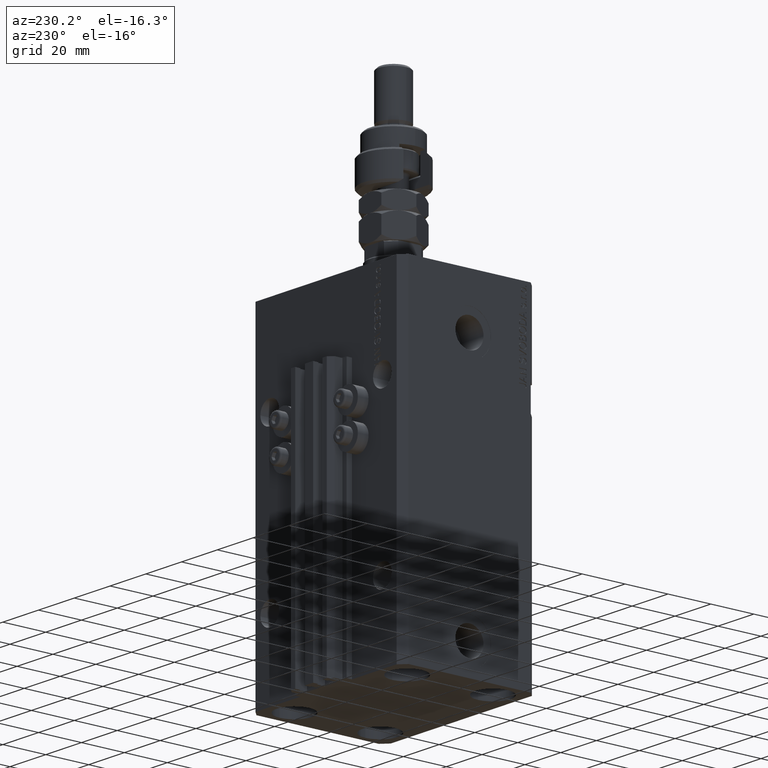
[diagram: clean part render]
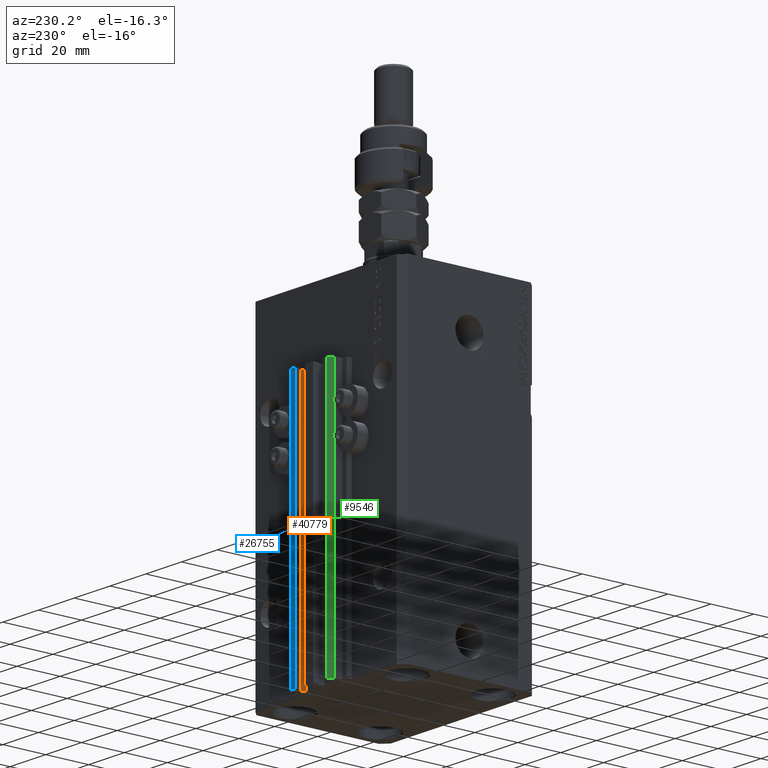
[diagram: same view with three faces highlighted in distinct colors, each labeled with its STEP entity id]
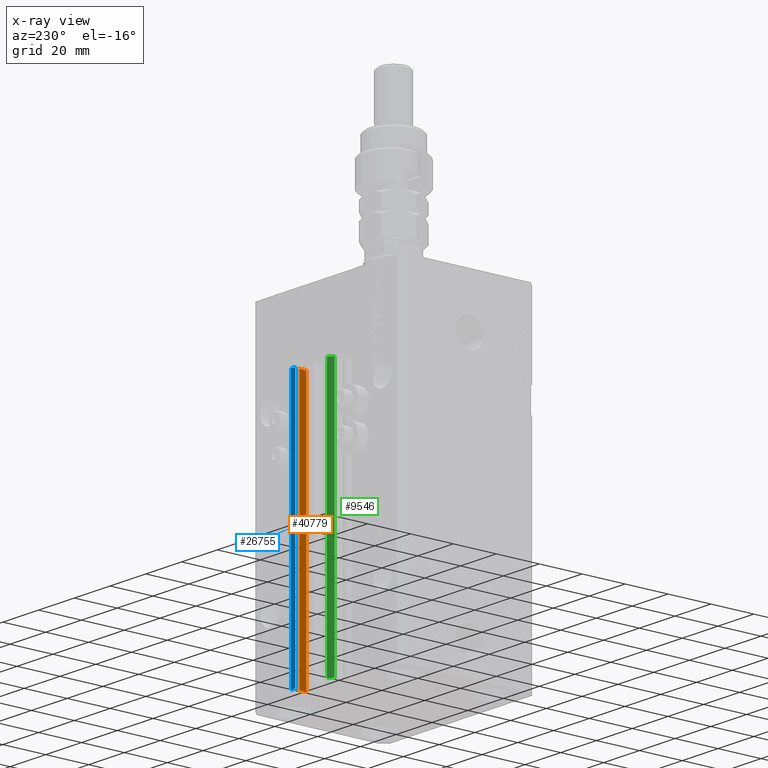
[diagram: x-ray of the same camera — body ghosted, the three highlighted faces saturated]
A machine part, auxiliary view with three faces highlighted in distinct colors.
The next image is the same camera in x-ray (body ghosted, the three faces saturated) — at least one of them is partly hidden behind the body in this view.
Their STEP definitions:

[orange] entity #40779 — the highlighted planar face has unit normal (-1, 0, 0).
#182 = AXIS2_PLACEMENT_3D ( 'NONE', #44430, #35849, #36106 ) ;
#611 = EDGE_CURVE ( 'NONE', #36556, #10864, #38581, .T. ) ;
#2662 = VERTEX_POINT ( 'NONE', #13393 ) ;
#5672 = ORIENTED_EDGE ( 'NONE', *, *, #20306, .T. ) ;
#7079 = LINE ( 'NONE', #30266, #15381 ) ;
#7697 = CARTESIAN_POINT ( 'NONE',  ( 8.400000000000000355, 33.70000000000000995, -153.0000000000000000 ) ) ;
#7750 = FACE_OUTER_BOUND ( 'NONE', #13682, .T. ) ;
#10864 = VERTEX_POINT ( 'NONE', #26174 ) ;
#12683 = PLANE ( 'NONE',  #182 ) ;
#13393 = CARTESIAN_POINT ( 'NONE',  ( 8.400000000000000355, 33.70000000000000995, -33.00000000000000000 ) ) ;
#13682 = EDGE_LOOP ( 'NONE', ( #44034, #49036, #5672, #26819 ) ) ;
#14702 = CARTESIAN_POINT ( 'NONE',  ( 8.400000000000003908, 36.90000000000001279, -153.0000000000000000 ) ) ;
#15137 = CARTESIAN_POINT ( 'NONE',  ( 8.400000000000000355, 36.90000000000001279, -33.00000000000000000 ) ) ;
#15381 = VECTOR ( 'NONE', #18547, 1000.000000000000000 ) ;
#17653 = EDGE_CURVE ( 'NONE', #47040, #2662, #7079, .T. ) ;
#18224 = DIRECTION ( 'NONE',  ( 0.000000000000000000, 0.000000000000000000, 1.000000000000000000 ) ) ;
#18547 = DIRECTION ( 'NONE',  ( 0.000000000000000000, 0.000000000000000000, 1.000000000000000000 ) ) ;
#19062 = LINE ( 'NONE', #15137, #25299 ) ;
#20306 = EDGE_CURVE ( 'NONE', #36556, #47040, #24827, .T. ) ;
#24827 = LINE ( 'NONE', #45355, #50372 ) ;
#25299 = VECTOR ( 'NONE', #38308, 1000.000000000000000 ) ;
#26174 = CARTESIAN_POINT ( 'NONE',  ( 8.400000000000003908, 36.90000000000001279, -33.00000000000000000 ) ) ;
#26819 = ORIENTED_EDGE ( 'NONE', *, *, #17653, .T. ) ;
#30266 = CARTESIAN_POINT ( 'NONE',  ( 8.400000000000000355, 33.70000000000000995, -153.0000000000000000 ) ) ;
#30794 = CARTESIAN_POINT ( 'NONE',  ( 8.400000000000003908, 36.90000000000001279, -153.0000000000000000 ) ) ;
#35849 = DIRECTION ( 'NONE',  ( -1.000000000000000000, 5.421010862427508365E-16, 0.000000000000000000 ) ) ;
#36106 = DIRECTION ( 'NONE',  ( -5.421010862427508365E-16, -1.000000000000000000, 0.000000000000000000 ) ) ;
#36556 = VERTEX_POINT ( 'NONE', #14702 ) ;
#38308 = DIRECTION ( 'NONE',  ( -5.421010862427508365E-16, -1.000000000000000000, 0.000000000000000000 ) ) ;
#38581 = LINE ( 'NONE', #30794, #43076 ) ;
#40686 = DIRECTION ( 'NONE',  ( -5.421010862427508365E-16, -1.000000000000000000, 0.000000000000000000 ) ) ;
#40779 = ADVANCED_FACE ( 'NONE', ( #7750 ), #12683, .T. ) ;
#43076 = VECTOR ( 'NONE', #18224, 1000.000000000000000 ) ;
#44034 = ORIENTED_EDGE ( 'NONE', *, *, #44429, .F. ) ;
#44429 = EDGE_CURVE ( 'NONE', #10864, #2662, #19062, .T. ) ;
#44430 = CARTESIAN_POINT ( 'NONE',  ( 8.400000000000000355, 36.90000000000001279, -153.0000000000000000 ) ) ;
#45355 = CARTESIAN_POINT ( 'NONE',  ( 8.400000000000000355, 36.90000000000001279, -153.0000000000000000 ) ) ;
#47040 = VERTEX_POINT ( 'NONE', #7697 ) ;
#49036 = ORIENTED_EDGE ( 'NONE', *, *, #611, .F. ) ;
#50372 = VECTOR ( 'NONE', #40686, 1000.000000000000000 ) ;

[blue] entity #26755 — the highlighted planar face has unit normal (0, 1, 0).
#946 = DIRECTION ( 'NONE',  ( 0.000000000000000000, 0.000000000000000000, 1.000000000000000000 ) ) ;
#1267 = DIRECTION ( 'NONE',  ( -1.000000000000000000, 0.000000000000000000, 0.000000000000000000 ) ) ;
#3556 = FACE_OUTER_BOUND ( 'NONE', #41201, .T. ) ;
#4781 = ORIENTED_EDGE ( 'NONE', *, *, #46089, .T. ) ;
#5715 = CARTESIAN_POINT ( 'NONE',  ( 9.999999999999998224, 39.50000000000002132, -153.0000000000000000 ) ) ;
#6788 = CARTESIAN_POINT ( 'NONE',  ( 9.999999999999998224, 39.50000000000002132, -33.00000000000000000 ) ) ;
#6873 = VECTOR ( 'NONE', #1267, 1000.000000000000000 ) ;
#7388 = VERTEX_POINT ( 'NONE', #17423 ) ;
#8764 = VERTEX_POINT ( 'NONE', #32915 ) ;
#9378 = LINE ( 'NONE', #5715, #50568 ) ;
#9664 = VERTEX_POINT ( 'NONE', #21229 ) ;
#10701 = LINE ( 'NONE', #6788, #35230 ) ;
#12859 = VERTEX_POINT ( 'NONE', #31606 ) ;
#12927 = LINE ( 'NONE', #41525, #23721 ) ;
#13243 = LINE ( 'NONE', #49402, #6873 ) ;
#16454 = AXIS2_PLACEMENT_3D ( 'NONE', #42862, #23088, #47013 ) ;
#17423 = CARTESIAN_POINT ( 'NONE',  ( 7.649999999999998579, 39.50000000000002132, -153.0000000000000000 ) ) ;
#21229 = CARTESIAN_POINT ( 'NONE',  ( 9.999999999999998224, 39.50000000000002132, -33.00000000000000000 ) ) ;
#23088 = DIRECTION ( 'NONE',  ( 0.000000000000000000, 1.000000000000000000, -0.000000000000000000 ) ) ;
#23721 = VECTOR ( 'NONE', #946, 1000.000000000000000 ) ;
#24072 = ORIENTED_EDGE ( 'NONE', *, *, #25634, .F. ) ;
#25634 = EDGE_CURVE ( 'NONE', #12859, #9664, #9378, .T. ) ;
#26097 = ORIENTED_EDGE ( 'NONE', *, *, #37908, .T. ) ;
#26755 = ADVANCED_FACE ( 'NONE', ( #3556 ), #38691, .T. ) ;
#31606 = CARTESIAN_POINT ( 'NONE',  ( 9.999999999999998224, 39.50000000000002132, -153.0000000000000000 ) ) ;
#32915 = CARTESIAN_POINT ( 'NONE',  ( 7.649999999999998579, 39.50000000000002132, -33.00000000000000000 ) ) ;
#35230 = VECTOR ( 'NONE', #38537, 1000.000000000000000 ) ;
#35719 = ORIENTED_EDGE ( 'NONE', *, *, #42668, .F. ) ;
#37908 = EDGE_CURVE ( 'NONE', #12859, #7388, #13243, .T. ) ;
#38537 = DIRECTION ( 'NONE',  ( -1.000000000000000000, 0.000000000000000000, 0.000000000000000000 ) ) ;
#38691 = PLANE ( 'NONE',  #16454 ) ;
#41201 = EDGE_LOOP ( 'NONE', ( #35719, #24072, #26097, #4781 ) ) ;
#41525 = CARTESIAN_POINT ( 'NONE',  ( 7.649999999999998579, 39.50000000000002132, -153.0000000000000000 ) ) ;
#42668 = EDGE_CURVE ( 'NONE', #9664, #8764, #10701, .T. ) ;
#42862 = CARTESIAN_POINT ( 'NONE',  ( 9.999999999999998224, 39.50000000000002132, -153.0000000000000000 ) ) ;
#46089 = EDGE_CURVE ( 'NONE', #7388, #8764, #12927, .T. ) ;
#47013 = DIRECTION ( 'NONE',  ( 0.000000000000000000, 0.000000000000000000, 1.000000000000000000 ) ) ;
#49402 = CARTESIAN_POINT ( 'NONE',  ( 9.999999999999998224, 39.50000000000002132, -153.0000000000000000 ) ) ;
#49690 = DIRECTION ( 'NONE',  ( 0.000000000000000000, 0.000000000000000000, 1.000000000000000000 ) ) ;
#50568 = VECTOR ( 'NONE', #49690, 1000.000000000000000 ) ;

[green] entity #9546 — the highlighted planar face has unit normal (-0.7071, 0.7071, 0).
#2842 = CARTESIAN_POINT ( 'NONE',  ( -10.00000000000000000, 39.49999999999999289, -153.0000000000000000 ) ) ;
#4559 = CARTESIAN_POINT ( 'NONE',  ( -12.00000000000000000, 37.49999999999999289, -33.00000000000000000 ) ) ;
#5186 = VERTEX_POINT ( 'NONE', #4559 ) ;
#6650 = EDGE_CURVE ( 'NONE', #12438, #41442, #48886, .T. ) ;
#7660 = ORIENTED_EDGE ( 'NONE', *, *, #6650, .F. ) ;
#9164 = LINE ( 'NONE', #25037, #38160 ) ;
#9546 = ADVANCED_FACE ( 'NONE', ( #15788 ), #47009, .T. ) ;
#10883 = EDGE_CURVE ( 'NONE', #32749, #5186, #23298, .T. ) ;
#11541 = ORIENTED_EDGE ( 'NONE', *, *, #30175, .T. ) ;
#12438 = VERTEX_POINT ( 'NONE', #2842 ) ;
#12992 = CARTESIAN_POINT ( 'NONE',  ( -10.00000000000000000, 39.49999999999999289, -153.0000000000000000 ) ) ;
#15010 = DIRECTION ( 'NONE',  ( -0.7071067811865472397, -0.7071067811865479058, 0.000000000000000000 ) ) ;
#15270 = VECTOR ( 'NONE', #46347, 999.9999999999998863 ) ;
#15788 = FACE_OUTER_BOUND ( 'NONE', #27369, .T. ) ;
#15994 = DIRECTION ( 'NONE',  ( 0.000000000000000000, 0.000000000000000000, 1.000000000000000000 ) ) ;
#19136 = CARTESIAN_POINT ( 'NONE',  ( -12.00000000000000000, 37.49999999999999289, -153.0000000000000000 ) ) ;
#19451 = CARTESIAN_POINT ( 'NONE',  ( -10.00000000000000000, 39.49999999999999289, -153.0000000000000000 ) ) ;
#20049 = VECTOR ( 'NONE', #29394, 1000.000000000000000 ) ;
#22674 = LINE ( 'NONE', #30493, #15270 ) ;
#23298 = LINE ( 'NONE', #19136, #30191 ) ;
#23868 = DIRECTION ( 'NONE',  ( -0.7071067811865479058, 0.7071067811865472397, 0.000000000000000000 ) ) ;
#25037 = CARTESIAN_POINT ( 'NONE',  ( -10.00000000000000000, 39.49999999999999289, -153.0000000000000000 ) ) ;
#27369 = EDGE_LOOP ( 'NONE', ( #33936, #7660, #11541, #43875 ) ) ;
#29394 = DIRECTION ( 'NONE',  ( 0.000000000000000000, 0.000000000000000000, 1.000000000000000000 ) ) ;
#30175 = EDGE_CURVE ( 'NONE', #12438, #32749, #9164, .T. ) ;
#30191 = VECTOR ( 'NONE', #15994, 1000.000000000000000 ) ;
#30493 = CARTESIAN_POINT ( 'NONE',  ( -10.00000000000000000, 39.49999999999999289, -33.00000000000000000 ) ) ;
#32749 = VERTEX_POINT ( 'NONE', #38298 ) ;
#33936 = ORIENTED_EDGE ( 'NONE', *, *, #42661, .F. ) ;
#35949 = AXIS2_PLACEMENT_3D ( 'NONE', #19451, #23868, #15010 ) ;
#38160 = VECTOR ( 'NONE', #40894, 999.9999999999998863 ) ;
#38298 = CARTESIAN_POINT ( 'NONE',  ( -12.00000000000000000, 37.49999999999999289, -153.0000000000000000 ) ) ;
#40894 = DIRECTION ( 'NONE',  ( -0.7071067811865472397, -0.7071067811865479058, 0.000000000000000000 ) ) ;
#41442 = VERTEX_POINT ( 'NONE', #43785 ) ;
#42661 = EDGE_CURVE ( 'NONE', #41442, #5186, #22674, .T. ) ;
#43785 = CARTESIAN_POINT ( 'NONE',  ( -10.00000000000000000, 39.49999999999999289, -33.00000000000000000 ) ) ;
#43875 = ORIENTED_EDGE ( 'NONE', *, *, #10883, .T. ) ;
#46347 = DIRECTION ( 'NONE',  ( -0.7071067811865472397, -0.7071067811865479058, 0.000000000000000000 ) ) ;
#47009 = PLANE ( 'NONE',  #35949 ) ;
#48886 = LINE ( 'NONE', #12992, #20049 ) ;